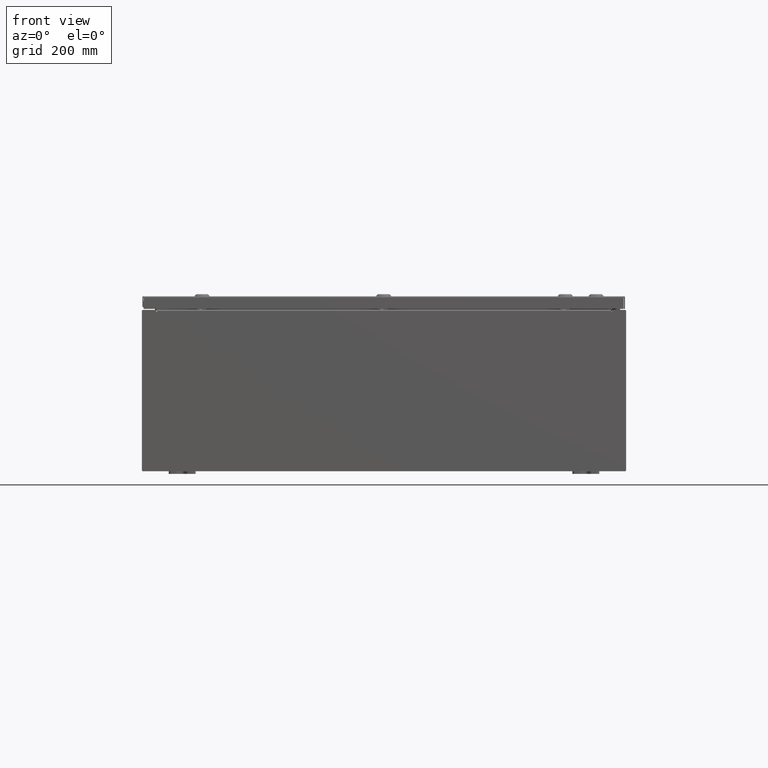
[diagram: clean part render]
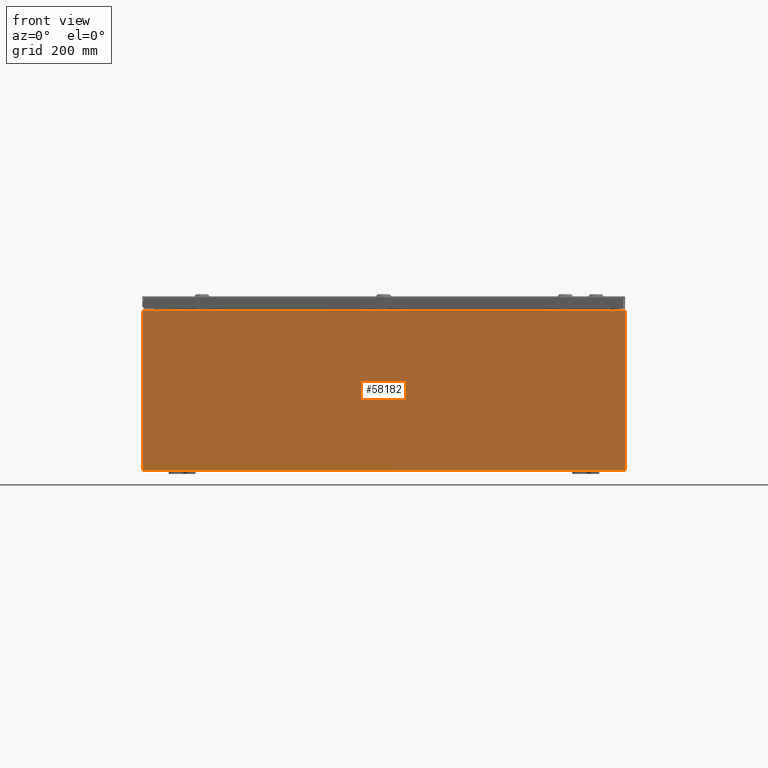
[diagram: same view with one face highlighted and labeled with its STEP entity id]
A machine part, front view. The second image highlights one B-rep face of the part: STEP entity #58182.
In plain terms, the highlighted planar face has unit normal (-0, 1, -0).
Its self-contained STEP definition (entity closure, byte-faithful):
#325 = CARTESIAN_POINT ( 'NONE',  ( 16.88720000000000000, 0.0000000000000000000, 5.874949999999999200 ) ) ;
#577 = EDGE_CURVE ( 'NONE', #31367, #47492, #19466, .T. ) ;
#1175 = DIRECTION ( 'NONE',  ( -1.000000000000000000, -0.0000000000000000000, -0.0000000000000000000 ) ) ;
#3393 = EDGE_CURVE ( 'NONE', #47492, #44747, #31702, .T. ) ;
#3488 = VERTEX_POINT ( 'NONE', #24218 ) ;
#3561 = VECTOR ( 'NONE', #65931, 39.37007874015748100 ) ;
#5081 = DIRECTION ( 'NONE',  ( 0.0000000000000000000, 0.0000000000000000000, -1.000000000000000000 ) ) ;
#5850 = CARTESIAN_POINT ( 'NONE',  ( 16.88720000000000000, 0.0000000000000000000, 5.912299999999999200 ) ) ;
#6042 = LINE ( 'NONE', #34489, #20088 ) ;
#6746 = CARTESIAN_POINT ( 'NONE',  ( 16.92454999999949200, -0.0000000000000000000, -1.469244821010302200E-012 ) ) ;
#8308 = VECTOR ( 'NONE', #48229, 39.37007874015748100 ) ;
#8650 = AXIS2_PLACEMENT_3D ( 'NONE', #68542, #36822, #5081 ) ;
#10021 = CARTESIAN_POINT ( 'NONE',  ( -16.92454999999998900, 0.0000000000000000000, 5.925299999999999100 ) ) ;
#10861 = CARTESIAN_POINT ( 'NONE',  ( -16.88719999999999600, 3.756290991288361700E-016, 5.912299999999999200 ) ) ;
#12093 = AXIS2_PLACEMENT_3D ( 'NONE', #62504, #25671, #62731 ) ;
#14047 = CARTESIAN_POINT ( 'NONE',  ( -16.88719999999998900, -0.0000000000000000000, 0.0000000000000000000 ) ) ;
#14158 = CARTESIAN_POINT ( 'NONE',  ( 17.92530000000000400, 0.0000000000000000000, 5.925300000000000000 ) ) ;
#14620 = LINE ( 'NONE', #52422, #67665 ) ;
#15169 = ORIENTED_EDGE ( 'NONE', *, *, #25915, .F. ) ;
#18122 = VECTOR ( 'NONE', #22712, 39.37007874015748100 ) ;
#18256 = CARTESIAN_POINT ( 'NONE',  ( 16.92455000000000400, 0.0000000000000000000, 5.925300000000000000 ) ) ;
#18335 = ORIENTED_EDGE ( 'NONE', *, *, #60166, .F. ) ;
#18380 = EDGE_CURVE ( 'NONE', #38859, #41435, #36504, .T. ) ;
#18443 = CARTESIAN_POINT ( 'NONE',  ( 17.92530000000000400, 0.0000000000000000000, 5.925300000000000000 ) ) ;
#18939 = VERTEX_POINT ( 'NONE', #10021 ) ;
#19466 = LINE ( 'NONE', #32084, #46063 ) ;
#19996 = EDGE_CURVE ( 'NONE', #25403, #49358, #28500, .T. ) ;
#20025 = VECTOR ( 'NONE', #34856, 39.37007874015748100 ) ;
#20088 = VECTOR ( 'NONE', #66246, 39.37007874015748100 ) ;
#20336 = PLANE ( 'NONE',  #12093 ) ;
#20692 = AXIS2_PLACEMENT_3D ( 'NONE', #25279, #62351, #30576 ) ;
#22355 = FACE_OUTER_BOUND ( 'NONE', #64368, .T. ) ;
#22712 = DIRECTION ( 'NONE',  ( -8.681145560799821800E-014, 0.0000000000000000000, -1.000000000000000000 ) ) ;
#24218 = CARTESIAN_POINT ( 'NONE',  ( 16.92455000000000000, 0.0000000000000000000, 5.874949999999999200 ) ) ;
#25279 = CARTESIAN_POINT ( 'NONE',  ( 16.90587500000000200, 0.0000000000000000000, 5.874949999999999200 ) ) ;
#25403 = VERTEX_POINT ( 'NONE', #52044 ) ;
#25671 = DIRECTION ( 'NONE',  ( 0.0000000000000000000, -1.000000000000000000, 0.0000000000000000000 ) ) ;
#25915 = EDGE_CURVE ( 'NONE', #31367, #3488, #32214, .T. ) ;
#26629 = VECTOR ( 'NONE', #1175, 39.37007874015748100 ) ;
#26871 = VECTOR ( 'NONE', #62672, 39.37007874015748100 ) ;
#27570 = CARTESIAN_POINT ( 'NONE',  ( -17.92529999999999600, 0.0000000000000000000, -5.925300000000000000 ) ) ;
#27850 = LINE ( 'NONE', #14047, #68460 ) ;
#28500 = LINE ( 'NONE', #57368, #26871 ) ;
#29293 = EDGE_CURVE ( 'NONE', #38859, #53590, #27850, .T. ) ;
#29530 = CARTESIAN_POINT ( 'NONE',  ( 16.88720000000000000, 0.0000000000000000000, 0.0000000000000000000 ) ) ;
#29878 = ORIENTED_EDGE ( 'NONE', *, *, #29293, .F. ) ;
#30009 = DIRECTION ( 'NONE',  ( 0.0000000000000000000, 0.0000000000000000000, -1.000000000000000000 ) ) ;
#30576 = DIRECTION ( 'NONE',  ( 0.0000000000000000000, 0.0000000000000000000, -1.000000000000000000 ) ) ;
#31367 = VERTEX_POINT ( 'NONE', #18256 ) ;
#31702 = LINE ( 'NONE', #18443, #3561 ) ;
#32084 = CARTESIAN_POINT ( 'NONE',  ( -17.92529999999999600, 0.0000000000000000000, 5.925299999999999100 ) ) ;
#32214 = LINE ( 'NONE', #6746, #18122 ) ;
#32240 = ORIENTED_EDGE ( 'NONE', *, *, #46138, .T. ) ;
#33142 = ORIENTED_EDGE ( 'NONE', *, *, #577, .T. ) ;
#33814 = CARTESIAN_POINT ( 'NONE',  ( -16.92454999999998900, 0.0000000000000000000, 5.874949999999999200 ) ) ;
#34489 = CARTESIAN_POINT ( 'NONE',  ( -16.92454999999998900, -0.0000000000000000000, 0.0000000000000000000 ) ) ;
#34856 = DIRECTION ( 'NONE',  ( 0.0000000000000000000, 0.0000000000000000000, 1.000000000000000000 ) ) ;
#35622 = ORIENTED_EDGE ( 'NONE', *, *, #19996, .T. ) ;
#36297 = CIRCLE ( 'NONE', #20692, 0.01867499999999949400 ) ;
#36504 = LINE ( 'NONE', #10861, #8308 ) ;
#36822 = DIRECTION ( 'NONE',  ( -0.0000000000000000000, 1.000000000000000000, -0.0000000000000000000 ) ) ;
#38859 = VERTEX_POINT ( 'NONE', #39056 ) ;
#39056 = CARTESIAN_POINT ( 'NONE',  ( -16.88719999999998900, 3.756290991288361700E-016, 5.912299999999999200 ) ) ;
#39307 = EDGE_CURVE ( 'NONE', #49358, #18939, #14620, .T. ) ;
#40047 = ORIENTED_EDGE ( 'NONE', *, *, #44777, .F. ) ;
#41068 = ORIENTED_EDGE ( 'NONE', *, *, #3393, .T. ) ;
#41435 = VERTEX_POINT ( 'NONE', #5850 ) ;
#42576 = DIRECTION ( 'NONE',  ( 1.000000000000000000, 0.0000000000000000000, 3.048036009064577000E-017 ) ) ;
#44747 = VERTEX_POINT ( 'NONE', #57879 ) ;
#44777 = EDGE_CURVE ( 'NONE', #53590, #49809, #66493, .T. ) ;
#46063 = VECTOR ( 'NONE', #42576, 39.37007874015748100 ) ;
#46075 = ORIENTED_EDGE ( 'NONE', *, *, #39307, .T. ) ;
#46138 = EDGE_CURVE ( 'NONE', #44747, #25403, #60037, .T. ) ;
#46904 = CARTESIAN_POINT ( 'NONE',  ( -17.92529999999999600, 0.0000000000000000000, 5.925299999999999100 ) ) ;
#47060 = DIRECTION ( 'NONE',  ( 1.000000000000000000, 0.0000000000000000000, 3.048036009064577000E-017 ) ) ;
#47492 = VERTEX_POINT ( 'NONE', #14158 ) ;
#47554 = EDGE_CURVE ( 'NONE', #3488, #51286, #36297, .T. ) ;
#48229 = DIRECTION ( 'NONE',  ( 1.000000000000000000, 0.0000000000000000000, 0.0000000000000000000 ) ) ;
#49358 = VERTEX_POINT ( 'NONE', #46904 ) ;
#49809 = VERTEX_POINT ( 'NONE', #33814 ) ;
#51286 = VERTEX_POINT ( 'NONE', #325 ) ;
#52044 = CARTESIAN_POINT ( 'NONE',  ( -17.92529999999999600, 0.0000000000000000000, -5.925300000000000000 ) ) ;
#52422 = CARTESIAN_POINT ( 'NONE',  ( -17.92529999999999600, 0.0000000000000000000, 5.925299999999999100 ) ) ;
#53590 = VERTEX_POINT ( 'NONE', #53765 ) ;
#53765 = CARTESIAN_POINT ( 'NONE',  ( -16.88719999999998900, -0.0000000000000000000, 5.874949999999999200 ) ) ;
#55356 = ORIENTED_EDGE ( 'NONE', *, *, #61085, .F. ) ;
#57368 = CARTESIAN_POINT ( 'NONE',  ( -17.92529999999999600, 0.0000000000000000000, 5.925299999999999100 ) ) ;
#57879 = CARTESIAN_POINT ( 'NONE',  ( 17.92530000000000400, 0.0000000000000000000, -5.925300000000000000 ) ) ;
#58182 = ADVANCED_FACE ( 'NONE', ( #22355 ), #20336, .F. ) ;
#60037 = LINE ( 'NONE', #27570, #26629 ) ;
#60166 = EDGE_CURVE ( 'NONE', #49809, #18939, #6042, .T. ) ;
#60634 = ORIENTED_EDGE ( 'NONE', *, *, #18380, .T. ) ;
#61085 = EDGE_CURVE ( 'NONE', #51286, #41435, #62298, .T. ) ;
#62000 = ORIENTED_EDGE ( 'NONE', *, *, #47554, .F. ) ;
#62298 = LINE ( 'NONE', #29530, #20025 ) ;
#62351 = DIRECTION ( 'NONE',  ( -0.0000000000000000000, 1.000000000000000000, -0.0000000000000000000 ) ) ;
#62504 = CARTESIAN_POINT ( 'NONE',  ( 0.0000000000000000000, 0.0000000000000000000, 0.0000000000000000000 ) ) ;
#62672 = DIRECTION ( 'NONE',  ( -0.0000000000000000000, -0.0000000000000000000, 1.000000000000000000 ) ) ;
#62731 = DIRECTION ( 'NONE',  ( 0.0000000000000000000, -0.0000000000000000000, -1.000000000000000000 ) ) ;
#64368 = EDGE_LOOP ( 'NONE', ( #18335, #40047, #29878, #60634, #55356, #62000, #15169, #33142, #41068, #32240, #35622, #46075 ) ) ;
#65931 = DIRECTION ( 'NONE',  ( 0.0000000000000000000, 0.0000000000000000000, -1.000000000000000000 ) ) ;
#66246 = DIRECTION ( 'NONE',  ( 0.0000000000000000000, 0.0000000000000000000, 1.000000000000000000 ) ) ;
#66493 = CIRCLE ( 'NONE', #8650, 0.01867499999999949400 ) ;
#67665 = VECTOR ( 'NONE', #47060, 39.37007874015748100 ) ;
#68460 = VECTOR ( 'NONE', #30009, 39.37007874015748100 ) ;
#68542 = CARTESIAN_POINT ( 'NONE',  ( -16.90587499999999100, 0.0000000000000000000, 5.874949999999999200 ) ) ;